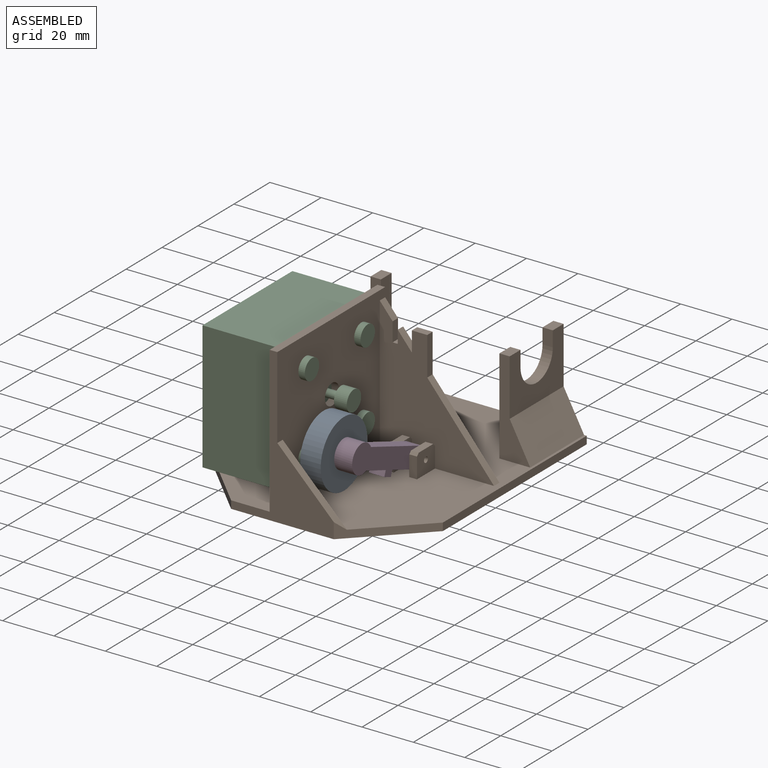
[diagram: assembled view]
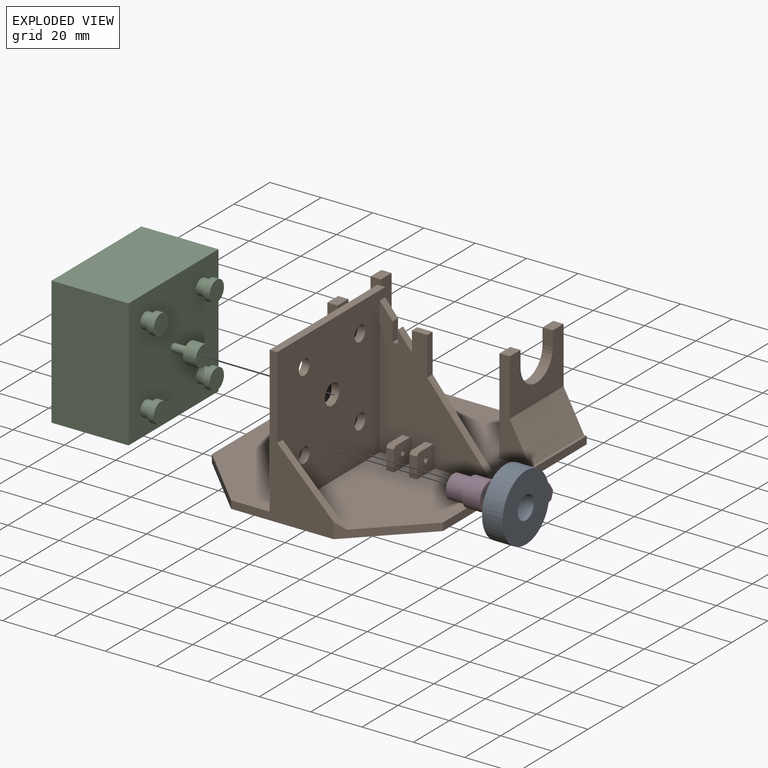
[diagram: exploded view]
GUIDED TOUR — MATED ASSEMBLY (Onshape document 13c378ac469ecfec790ed111, AutoMate assembly 13c378ac469ecfec790ed111_296bcca47453bc3b6c15b679_a3dc4cd97cb48cd143a2b4be_default)

This assembly has 4 components, labeled P0..P3 below (a component is one placed occurrence of a part; the same part can appear more than once), held together by 3 mates. A mate is a constraint between two components; its type names the relative motion it leaves free:
  FASTENED — locks the two components together rigidly (no relative motion),
  REVOLUTE — leaves rotation about the listed axis free (a hinge).
Axis/direction vectors are unit vectors and 'through' points are millimeter coordinates, both in the assembly's world frame.

MATES
  1. FASTENED "Fastened 1": P0 <-> P3, direction (1.000, 0.000, 0.000) through (15.56, -32.27, 34.82) mm
  2. REVOLUTE "Revolute 1": P3 <-> P1, axis (1.000, 0.000, 0.000) through (30.56, -0.98, 23.42) mm
  3. FASTENED "Fastened 2": P2 <-> P1, direction (1.000, 0.000, 0.000) through (9.06, -37.98, 64.42) mm

ASSEMBLY ORDER
  1. P1 — the base component [order heuristic]
  2. P2 [order heuristic]
  3. P3 [order heuristic]
  4. P0 [order heuristic]
Order-tag legend:
  [order heuristic] — this assembly is geometrically interlocked (no collision-free removal order exists), so components are listed in mate-graph order; insertion feasibility is not verified.

Of the 4 components, 4 carry the full construction recipe — the FeatureScript program that regenerates the part's solid from scratch; the rest are supplied as boundary geometry only.
Each toured component is shown spotlighted twice — in the assembled view, then in the exploded view, where a leader line traces a displaced component back to its assembled socket (saturated green if recipe-attached, orange if geometry-only; every other component desaturated gray) — followed by its recipe or geometry summary and the mates that hold it.
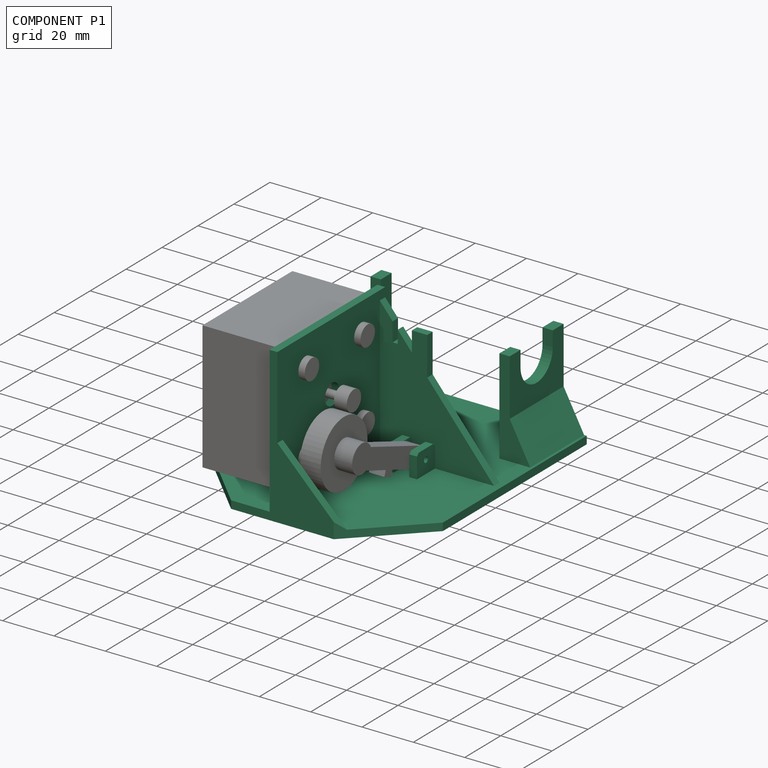
[diagram: component P1 — assembled]
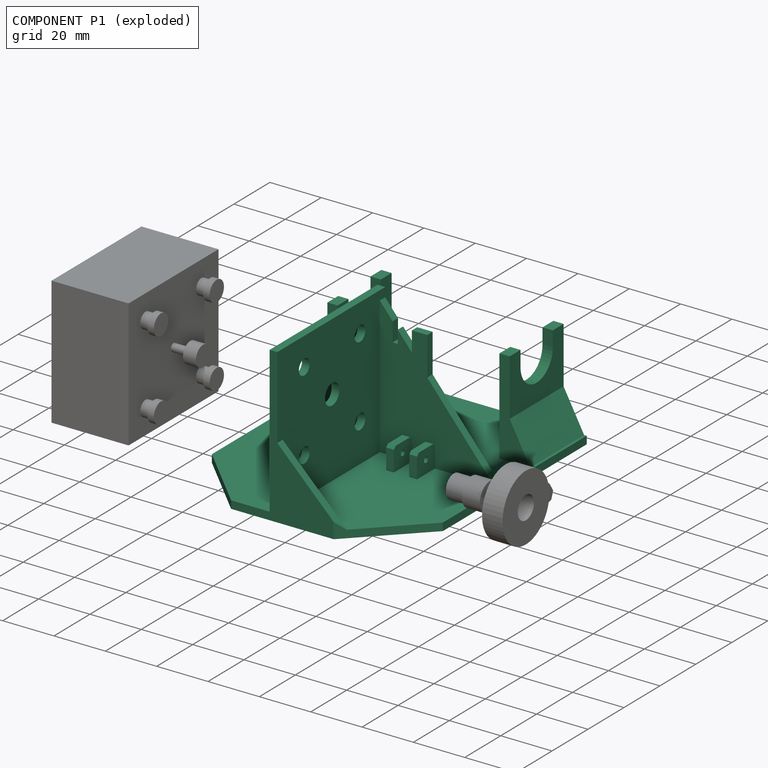
[diagram: component P1 — exploded]
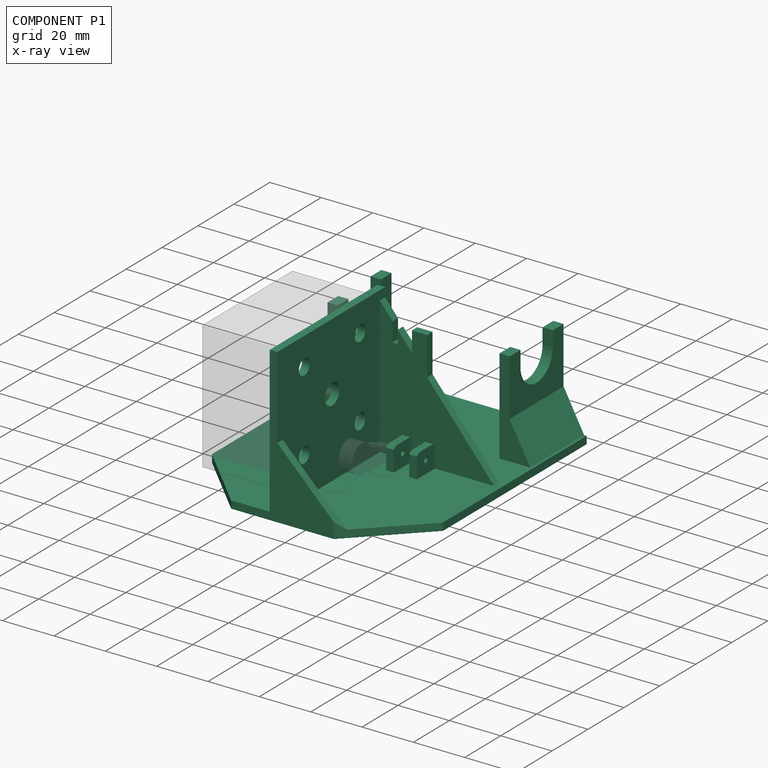
[diagram: component P1 — x-ray view]
COMPONENT P1 — recipe-attached (CADFS 00837090, mesh-verified: the recipe's output STEP matches this component's geometry to below the mesh-comparison resolution (tessellation chordal tolerance ~0.226 mm)).
Held by: REVOLUTE mate "Revolute 1" to P3; FASTENED mate "Fastened 2" to P2.
Construction recipe (FeatureScript — the CAD program that rebuilds this solid; sketch coordinates are in the units given by the * unit suffixes, e.g. mm):

FeatureScript 1511;
import(path : "onshape/std/geometry.fs", version : "1511.0");
import(path : "onshape/std/common.fs", version : "1511.0");
const mm = millimeter;
const VERTEX = EntityType.VERTEX;
const EDGE = EntityType.EDGE;
const FACE = EntityType.FACE;
const BODY = EntityType.BODY;
function v(x, y){return vector(x, y);}
function OD(order){return orderDisambiguation(order);}
function OSD(set){return originalSetDisambiguation(set);}
function TD(topology){return topologyDisambiguation(topology);}
function TDD(query){return trueDependencyDisambiguation(query);}
function sQuery(a, b, c) {return sketchEntityQuery(a, b, c);}

annotation { "Feature Type Name" : "Feature", "Feature Type Description" : "" }
export const myFeature = defineFeature(function(context is Context, id is Id, definition is map)
    precondition{}
    {
        {
            var Q0;
            Q0=qCreatedBy(makeId("Top.planeOp"),FACE);
            var sketch = newSketch(context, id + "F0", { "sketchPlane" : qUnion([Q0])});
            skLineSegment(sketch, "E0.bottom", {"start": v(0, 0) * mm, "end": v(50, 0) * mm});
            skLineSegment(sketch, "E0.top", {"start": v(0, -60) * mm, "end": v(50, -60) * mm});
            skLineSegment(sketch, "E0.left", {"start": v(0, 0) * mm, "end": v(0, -60) * mm});
            skLineSegment(sketch, "E0.right", {"start": v(50, 0) * mm, "end": v(50, -60) * mm});
            skLineSegment(sketch, "E1.top", {"start": v(0, 45) * mm, "end": v(50, 45) * mm});
            skLineSegment(sketch, "E1.left", {"start": v(0, 0) * mm, "end": v(0, 45) * mm});
            skLineSegment(sketch, "E1.right", {"start": v(50, 0) * mm, "end": v(50, 45) * mm});
            skLineSegment(sketch, "E2.bottom", {"start": v(0, -60) * mm, "end": v(-40, -60) * mm});
            skLineSegment(sketch, "E2.top", {"start": v(0, 0) * mm, "end": v(-40, 0) * mm});
            skLineSegment(sketch, "E2.left", {"start": v(0, -60) * mm, "end": v(0, 0) * mm});
            skLineSegment(sketch, "E2.right", {"start": v(-40, -60) * mm, "end": v(-40, 0) * mm});
            skLineSegment(sketch, "E3.bottom", {"start": v(21.5, -3) * mm, "end": v(24.5, -3) * mm});
            skLineSegment(sketch, "E3.top", {"start": v(21.5, -13) * mm, "end": v(24.5, -13) * mm});
            skLineSegment(sketch, "E3.left", {"start": v(21.5, -3) * mm, "end": v(21.5, -13) * mm});
            skLineSegment(sketch, "E3.right", {"start": v(24.5, -3) * mm, "end": v(24.5, -13) * mm});
            skLineSegment(sketch, "E4.bottom", {"start": v(12.5, -3) * mm, "end": v(15.5, -3) * mm});
            skLineSegment(sketch, "E4.top", {"start": v(12.5, -13) * mm, "end": v(15.5, -13) * mm});
            skLineSegment(sketch, "E4.left", {"start": v(12.5, -3) * mm, "end": v(12.5, -13) * mm});
            skLineSegment(sketch, "E4.right", {"start": v(15.5, -3) * mm, "end": v(15.5, -13) * mm});
            skLineSegment(sketch, "E5", {"start": v(-40, 45) * mm, "end": v(-40, 0) * mm});
            skLineSegment(sketch, "E6", {"start": v(-40, 45) * mm, "end": v(0, 45) * mm});
            skLineSegment(sketch, "E7.bottom", {"start": v(-30, 45) * mm, "end": v(-26, 45) * mm});
            skLineSegment(sketch, "E7.top", {"start": v(-30, 15) * mm, "end": v(-26, 15) * mm});
            skLineSegment(sketch, "E7.left", {"start": v(-30, 45) * mm, "end": v(-30, 15) * mm});
            skLineSegment(sketch, "E7.right", {"start": v(-26, 45) * mm, "end": v(-26, 15) * mm});
            skLineSegment(sketch, "E8.bottom", {"start": v(37, 45) * mm, "end": v(41, 45) * mm});
            skLineSegment(sketch, "E8.top", {"start": v(37, 15) * mm, "end": v(41, 15) * mm});
            skLineSegment(sketch, "E8.left", {"start": v(37, 45) * mm, "end": v(37, 15) * mm});
            skLineSegment(sketch, "E8.right", {"start": v(41, 45) * mm, "end": v(41, 15) * mm});
            skSolve(sketch);
        }
        {
            var Q0;
            Q0=makeQuery(id+"F0.imprint","IMPRINT",FACE,{"disambiguationData":[TD([[makeQuery(id+"F0.imprint","IMPRINT",EDGE,{"derivedFrom":sQuery(id+"F0.wireOp",EDGE,"E0.left")}),-1.0]])]});
            var Q1;
            Q1=makeQuery(id+"F0.imprint","IMPRINT",FACE,{"disambiguationData":[TD([[makeQuery(id+"F0.imprint","IMPRINT",EDGE,{"derivedFrom":sQuery(id+"F0.wireOp",EDGE,"E0.bottom")}),-1.0]])]});
            var Q2;
            {var subQ1=sQuery(id+"F0.wireOp",EDGE,"48ikspD8-P3td-oRdJ-VHEi-jSUkpiZ7QIT4.bottom");Q2=makeQuery(id+"F0.imprint","IMPRINT",FACE,{"disambiguationData":[TD([[makeQuery(id+"F0.imprint","IMPRINT",EDGE,{"derivedFrom":subQ1}),-1.0]])]});}
            var Q3;
            Q3=makeQuery(id+"F0.imprint","IMPRINT",FACE,{"disambiguationData":[TD([[makeQuery(id+"F0.imprint","IMPRINT",EDGE,{"derivedFrom":sQuery(id+"F0.wireOp",EDGE,"E0.bottom")}),1.0]])]});
            var Q4;
            Q4=makeQuery(id+"F0.imprint","IMPRINT",FACE,{"disambiguationData":[TD([[makeQuery(id+"F0.imprint","IMPRINT",EDGE,{"derivedFrom":sQuery(id+"F0.wireOp",EDGE,"48ikspD8-P3td-oRdJ-VHEi-jSUkpiZ7QIT4.bottom")}),1.0]])]});
            var Q5;
            Q5=makeQuery(id+"F0.imprint","IMPRINT",FACE,{"disambiguationData":[TD([[makeQuery(id+"F0.imprint","IMPRINT",EDGE,{"derivedFrom":sQuery(id+"F0.wireOp",EDGE,"BPw0P3i8-2CSX-RIvv-VPia-wM2BSo4PSIyP.bottom")}),1.0]])]});
            var Q6;
            {var subQ2=sQuery(id+"F0.wireOp",EDGE,"BPw0P3i8-2CSX-RIvv-VPia-wM2BSo4PSIyP.bottom");Q6=makeQuery(id+"F0.imprint","IMPRINT",FACE,{"disambiguationData":[TD([[makeQuery(id+"F0.imprint","IMPRINT",EDGE,{"derivedFrom":subQ2}),-1.0]])]});}
            var Q7;
            {var subQ2=sQuery(id+"F0.wireOp",EDGE,"BPw0P3i8-2CSX-RIvv-VPia-wM2BSo4PSIyP.top");Q7=makeQuery(id+"F0.imprint","IMPRINT",FACE,{"disambiguationData":[TD([[makeQuery(id+"F0.imprint","IMPRINT",EDGE,{"derivedFrom":subQ2}),1.0]])]});}
            var Q8;
            {var subQ2=sQuery(id+"F0.wireOp",EDGE,"48ikspD8-P3td-oRdJ-VHEi-jSUkpiZ7QIT4.top");Q8=makeQuery(id+"F0.imprint","IMPRINT",FACE,{"disambiguationData":[TD([[makeQuery(id+"F0.imprint","IMPRINT",EDGE,{"derivedFrom":subQ2}),1.0]])]});}
            var Q9;
            {var subQ1=sQuery(id+"F0.wireOp",EDGE,"E1.left");Q9=makeQuery(id+"F0.imprint","IMPRINT",FACE,{"disambiguationData":[TD([[makeQuery(id+"F0.imprint","IMPRINT",EDGE,{"derivedFrom":subQ1}),1.0]])]});}
            extrude(context, id + "F1", {"entities" : qUnion([Q0, Q1, Q2, Q3, Q4, Q5, Q6, Q7, Q8, Q9]), "depth" : 3 * mm, "offsetDistance" : 25 * mm});
        }
        {
            var Q0;
            Q0=makeQuery(id+"F0.imprint","IMPRINT",FACE,{"disambiguationData":[TD([[makeQuery(id+"F0.imprint","IMPRINT",EDGE,{"derivedFrom":sQuery(id+"F0.wireOp",EDGE,"E7.top")}),1.0]])]});
            var Q1;
            Q1=makeQuery(id+"F0.imprint","IMPRINT",FACE,{"disambiguationData":[TD([[makeQuery(id+"F0.imprint","IMPRINT",EDGE,{"derivedFrom":sQuery(id+"F0.wireOp",EDGE,"E8.top")}),1.0]])]});
            extrude(context, id + "F2", {"entities" : qUnion([Q0, Q1]), "operationType" : NewBodyOperationType.ADD, "depth" : 40 * mm, "offsetDistance" : 25 * mm});
        }
        {
            var Q0;
            Q0=makeQuery(id+"F0.imprint","IMPRINT",FACE,{"disambiguationData":[TD([[makeQuery(id+"F0.imprint","IMPRINT",EDGE,{"derivedFrom":sQuery(id+"F0.wireOp",EDGE,"E3.bottom")}),-1.0]])]});
            var Q1;
            Q1=makeQuery(id+"F0.imprint","IMPRINT",FACE,{"disambiguationData":[TD([[makeQuery(id+"F0.imprint","IMPRINT",EDGE,{"derivedFrom":sQuery(id+"F0.wireOp",EDGE,"E4.bottom")}),-1.0]])]});
            extrude(context, id + "F3", {"entities" : qUnion([Q0, Q1]), "operationType" : NewBodyOperationType.ADD, "depth" : 12 * mm, "offsetDistance" : 25 * mm});
        }
        {
            var Q0;
            Q0=makeQuery(id+"F3.opExtrude","CAP_EDGE",EDGE,{"disambiguationData":[OSD([sQuery(id+"F0.wireOp",EDGE,"E4.bottom")])],"isStart":false});
            var Q1;
            Q1=makeQuery(id+"F3.opExtrude","CAP_EDGE",EDGE,{"disambiguationData":[OSD([sQuery(id+"F0.wireOp",EDGE,"E3.bottom")])],"isStart":false});
            var Q2;
            Q2=makeQuery(id+"F3.opExtrude","CAP_EDGE",EDGE,{"disambiguationData":[OSD([sQuery(id+"F0.wireOp",EDGE,"E3.top")])],"isStart":false});
            var Q3;
            Q3=makeQuery(id+"F3.opExtrude","CAP_EDGE",EDGE,{"disambiguationData":[OSD([sQuery(id+"F0.wireOp",EDGE,"E4.top")])],"isStart":false});
            chamfer(context, id + "F4", {"entities" : qUnion([Q0, Q1, Q2, Q3]), "width" : 1 * mm, "tangentPropagation" : true});
        }
        {
            var Q0;
            Q0=makeQuery(id+"F3.opExtrude","SWEPT_FACE",FACE,{"disambiguationData":[OSD([sQuery(id+"F0.wireOp",EDGE,"E3.right")])]});
            var sketch = newSketch(context, id + "F5", { "sketchPlane" : qUnion([Q0])});
            skCircle(sketch, "E9", {"center": v(-8, 8) * mm, "radius": 1.1 * mm});
            skSolve(sketch);
        }
        {
            var Q0;
            Q0=makeQuery(id+"F5.imprint","IMPRINT",FACE,{"disambiguationData":[TD([[makeQuery(id+"F5.imprint","IMPRINT",EDGE,{"derivedFrom":sQuery(id+"F5.wireOp",EDGE,"E9")}),1.0]])]});
            extrude(context, id + "F6", {"entities" : qUnion([Q0]), "operationType" : NewBodyOperationType.REMOVE, "oppositeDirection" : true, "depth" : 13 * mm, "offsetDistance" : 25 * mm});
        }
        {
            var Q0;
            Q0=qCreatedBy(makeId("Right.planeOp"),FACE);
            var sketch = newSketch(context, id + "F7", { "sketchPlane" : qUnion([Q0])});
            skLineSegment(sketch, "E10.bottom", {"start": v(0, 0) * mm, "end": v(-60, 0) * mm});
            skLineSegment(sketch, "E10.top", {"start": v(0, 60) * mm, "end": v(-60, 60) * mm});
            skLineSegment(sketch, "E10.left", {"start": v(0, 0) * mm, "end": v(0, 60) * mm});
            skLineSegment(sketch, "E10.right", {"start": v(-60, 0) * mm, "end": v(-60, 60) * mm});
            skCircle(sketch, "E11", {"center": v(-14, 49) * mm, "radius": 3 * mm});
            skCircle(sketch, "E12", {"center": v(-14, 18) * mm, "radius": 3 * mm});
            skCircle(sketch, "E13", {"center": v(-45, 49) * mm, "radius": 3 * mm});
            skCircle(sketch, "E14", {"center": v(-45, 18) * mm, "radius": 3 * mm});
            skLineSegment(sketch, "E15", {"start": v(-14, 49) * mm, "end": v(-45, 18) * mm, "construction": true});
            skPoint(sketch, "E16", {"position": v(-29.5, 33.5) * mm});
            skCircle(sketch, "E17", {"center": v(-29.5, 33.5) * mm, "radius": 4 * mm});
            skSolve(sketch);
        }
        {
            var Q0;
            {var subQ6=sQuery(id+"F7.wireOp",EDGE,"E10.bottom");Q0=makeQuery(id+"F7.imprint","IMPRINT",FACE,{"disambiguationData":[TD([[makeQuery(id+"F7.imprint","IMPRINT",EDGE,{"derivedFrom":subQ6}),-1.0]])]});}
            var Q1;
            {var subQ0=sQuery(id+"F7.wireOp",EDGE,"5ZiI2LFI-yI2u-3i1h-Rta8-WbluecZz7jaP");Q1=makeQuery(id+"F7.imprint","IMPRINT",FACE,{"disambiguationData":[TD([[makeQuery(id+"F7.imprint","IMPRINT",EDGE,{"derivedFrom":subQ0}),1.0]])]});}
            var Q2;
            {var subQ0=sQuery(id+"F7.wireOp",EDGE,"irvJjMzV-y1dr-gsLo-wSKk-gEWEVd7XGJBn");Q2=makeQuery(id+"F7.imprint","IMPRINT",FACE,{"disambiguationData":[TD([[makeQuery(id+"F7.imprint","IMPRINT",EDGE,{"derivedFrom":subQ0}),1.0]])]});}
            extrude(context, id + "F8", {"entities" : qUnion([Q0, Q1, Q2]), "operationType" : NewBodyOperationType.ADD, "depth" : 3 * mm, "offsetDistance" : 25 * mm});
        }
        {
            var Q0;
            Q0=qCreatedBy(makeId("Front.planeOp"),FACE);
            var sketch = newSketch(context, id + "F9", { "sketchPlane" : qUnion([Q0])});
            skLineSegment(sketch, "E18.bottom", {"start": v(0, 0) * mm, "end": v(50, 0) * mm});
            skLineSegment(sketch, "E18.left", {"start": v(0, 0) * mm, "end": v(0, 60) * mm});
            skLineSegment(sketch, "E19", {"start": v(50, 0) * mm, "end": v(0, 60) * mm});
            skLineSegment(sketch, "E20", {"start": v(15.5, 41.4) * mm, "end": v(15.5, 49.2) * mm});
            skLineSegment(sketch, "E21", {"start": v(15.5, 49.2) * mm, "end": v(21.5, 49.2) * mm});
            skLineSegment(sketch, "E22", {"start": v(21.5, 49.2) * mm, "end": v(21.5, 34.2) * mm});
            skLineSegment(sketch, "E23", {"start": v(8, 50.4) * mm, "end": v(8, 43) * mm});
            skLineSegment(sketch, "E24", {"start": v(8, 43) * mm, "end": v(10, 43) * mm});
            skLineSegment(sketch, "E25", {"start": v(10, 43) * mm, "end": v(10, 48) * mm});
            skSolve(sketch);
        }
        {
            var Q0;
            Q0=makeQuery(id+"F9.imprint","IMPRINT",FACE,{"disambiguationData":[TD([[makeQuery(id+"F9.imprint","IMPRINT",EDGE,{"derivedFrom":sQuery(id+"F9.wireOp",EDGE,"E18.bottom")}),1.0]])]});
            var Q1;
            {var subQ0=sQuery(id+"F9.wireOp",EDGE,"E20");Q1=makeQuery(id+"F9.imprint","IMPRINT",FACE,{"disambiguationData":[TD([[makeQuery(id+"F9.imprint","IMPRINT",EDGE,{"derivedFrom":subQ0}),-1.0]])]});}
            extrude(context, id + "F10", {"entities" : qUnion([Q0, Q1]), "operationType" : NewBodyOperationType.ADD, "depth" : 3 * mm, "offsetDistance" : 25 * mm});
        }
        {
            var Q0;
            Q0=makeQuery(id+"F2.opExtrude","SWEPT_FACE",FACE,{"disambiguationData":[OSD([sQuery(id+"F0.wireOp",EDGE,"E8.right")])]});
            var sketch = newSketch(context, id + "F11", { "sketchPlane" : qUnion([Q0])});
            skCircle(sketch, "E26", {"center": v(30, 34) * mm, "radius": 9 * mm});
            skLineSegment(sketch, "E27", {"start": v(39, 34) * mm, "end": v(39, 47) * mm});
            skLineSegment(sketch, "E28", {"start": v(21, 34) * mm, "end": v(21, 47) * mm});
            skLineSegment(sketch, "E29", {"start": v(39, 47) * mm, "end": v(21, 47) * mm});
            skSolve(sketch);
        }
        {
            var Q0;
            {var subQ0=sQuery(id+"F11.wireOp",EDGE,"E29");Q0=makeQuery(id+"F11.imprint","IMPRINT",FACE,{"disambiguationData":[TD([[makeQuery(id+"F11.imprint","IMPRINT",EDGE,{"derivedFrom":subQ0}),1.0]])]});}
            var Q1;
            {var subQ0=sQuery(id+"F11.wireOp",EDGE,"E26");var subQ1=makeQuery(id+"F11.imprint","INTERSECT",VERTEX,{"derivedFrom":[subQ0,sQuery(id+"F11.wireOp",EDGE,"E28")]});Q1=makeQuery(id+"F11.imprint","IMPRINT",FACE,{"disambiguationData":[TD([[makeQuery(id+"F11.imprint","IMPRINT",EDGE,{"disambiguationData":[TD([[subQ1,1.0]])],"derivedFrom":subQ0}),1.0]])]});}
            var Q2;
            {var subQ0=sQuery(id+"F11.wireOp",EDGE,"E26");var subQ1=makeQuery(id+"F2.opExtrude","CAP_EDGE",EDGE,{"disambiguationData":[OSD([sQuery(id+"F0.wireOp",EDGE,"E8.right")])],"isStart":false});var subQ2=makeQuery(id+"F11.imprint","INTERSECT",VERTEX,{"disambiguationData":[OD(0.0)],"derivedFrom":[subQ1,subQ0]});Q2=makeQuery(id+"F11.imprint","IMPRINT",FACE,{"disambiguationData":[TD([[makeQuery(id+"F11.imprint","IMPRINT",EDGE,{"disambiguationData":[TD([[subQ2,1.0]])],"derivedFrom":subQ0}),1.0]])]});}
            var Q3;
            {var subQ0=sQuery(id+"F11.wireOp",EDGE,"E28");var subQ1=sQuery(id+"F11.wireOp",EDGE,"E26");var subQ2=makeQuery(id+"F11.imprint","INTERSECT",VERTEX,{"derivedFrom":[subQ1,subQ0]});Q3=makeQuery(id+"F11.imprint","IMPRINT",FACE,{"disambiguationData":[TD([[makeQuery(id+"F11.imprint","IMPRINT",EDGE,{"disambiguationData":[TD([[subQ2,1.0]])],"derivedFrom":subQ1}),-1.0]])]});}
            var Q4;
            {var subQ0=sQuery(id+"F11.wireOp",EDGE,"E27");var subQ1=sQuery(id+"F11.wireOp",EDGE,"E26");var subQ2=makeQuery(id+"F11.imprint","INTERSECT",VERTEX,{"derivedFrom":[subQ1,subQ0]});Q4=makeQuery(id+"F11.imprint","IMPRINT",FACE,{"disambiguationData":[TD([[makeQuery(id+"F11.imprint","IMPRINT",EDGE,{"disambiguationData":[TD([[subQ2,-1.0]])],"derivedFrom":subQ1}),-1.0]])]});}
            extrude(context, id + "F12", {"entities" : qUnion([Q0, Q1, Q2, Q3, Q4]), "operationType" : NewBodyOperationType.REMOVE, "oppositeDirection" : true, "depth" : 100 * mm, "offsetDistance" : 25 * mm});
        }
        {
            var Q0;
            Q0=makeQuery(id+"F8.boolean.opBoolean","MERGE",FACE,{"derivedFrom":[makeQuery(id+"F1.opExtrude","SWEPT_FACE",FACE,{"disambiguationData":[OSD([sQuery(id+"F0.wireOp",EDGE,"E0.top"),sQuery(id+"F0.wireOp",EDGE,"E2.bottom")])]}),makeQuery(id+"F8.opExtrude","SWEPT_FACE",FACE,{"disambiguationData":[OSD([sQuery(id+"F7.wireOp",EDGE,"E10.right")])]})]});
            var sketch = newSketch(context, id + "F13", { "sketchPlane" : qUnion([Q0])});
            skLineSegment(sketch, "E30", {"start": v(3, 3) * mm, "end": v(3, 28) * mm});
            skLineSegment(sketch, "E31", {"start": v(3, 28) * mm, "end": v(28, 3) * mm});
            skLineSegment(sketch, "E32", {"start": v(28, 3) * mm, "end": v(3, 3) * mm});
            skSolve(sketch);
        }
        {
            var Q0;
            Q0=makeQuery(id+"F13.imprint","IMPRINT",FACE,{"disambiguationData":[TD([[makeQuery(id+"F13.imprint","IMPRINT",EDGE,{"derivedFrom":sQuery(id+"F13.wireOp",EDGE,"E30")}),-1.0]])]});
            extrude(context, id + "F14", {"entities" : qUnion([Q0]), "operationType" : NewBodyOperationType.ADD, "oppositeDirection" : true, "depth" : 3 * mm, "offsetDistance" : 25 * mm});
        }
        {
            var Q0;
            Q0=makeQuery(id+"F1.opExtrude","SWEPT_EDGE",EDGE,{"disambiguationData":[OSD([sQuery(id+"F0.wireOp",EDGE,"E0.top"),sQuery(id+"F0.wireOp",EDGE,"E0.right")])]});
            var Q1;
            Q1=makeQuery(id+"F1.opExtrude","SWEPT_EDGE",EDGE,{"disambiguationData":[OSD([sQuery(id+"F0.wireOp",EDGE,"E2.bottom"),sQuery(id+"F0.wireOp",EDGE,"E2.right")])]});
            chamfer(context, id + "F15", {"entities" : qUnion([Q0, Q1]), "width" : 25 * mm, "tangentPropagation" : true});
        }
        {
            var Q0;
            {var subQ0=sQuery(id+"F0.wireOp",EDGE,"E6");var subQ1=sQuery(id+"F0.wireOp",EDGE,"E1.top");Q0=makeQuery(id+"F2.boolean.opBoolean","MERGE",FACE,{"derivedFrom":[makeQuery(id+"F1.opExtrude","SWEPT_FACE",FACE,{"disambiguationData":[OSD([subQ1,subQ0])]}),makeQuery(id+"F1.opExtrude","SWEPT_FACE",FACE,{"disambiguationData":[OSD([subQ1])]}),makeQuery(id+"F1.opExtrude","SWEPT_FACE",FACE,{"disambiguationData":[OSD([subQ0])]}),makeQuery(id+"F2.opExtrude","SWEPT_FACE",FACE,{"disambiguationData":[OSD([subQ1])]}),makeQuery(id+"F2.opExtrude","SWEPT_FACE",FACE,{"disambiguationData":[OSD([subQ0])]})]});}
            var sketch = newSketch(context, id + "F16", { "sketchPlane" : qUnion([Q0])});
            skPoint(sketch, "E33.0", {"position": v(-41, 3) * mm});
            skPoint(sketch, "E33.1", {"position": v(30, 3) * mm});
            skLineSegment(sketch, "E34", {"start": v(-41, 3) * mm, "end": v(-41, 18) * mm});
            skLineSegment(sketch, "E35", {"start": v(-41, 18) * mm, "end": v(-49, 3) * mm});
            skLineSegment(sketch, "E36", {"start": v(-49, 3) * mm, "end": v(-41, 3) * mm});
            skLineSegment(sketch, "E37", {"start": v(30, 3) * mm, "end": v(30, 18) * mm});
            skLineSegment(sketch, "E38", {"start": v(30, 18) * mm, "end": v(38, 3) * mm});
            skLineSegment(sketch, "E39", {"start": v(38, 3) * mm, "end": v(30, 3) * mm});
            skSolve(sketch);
        }
        {
            var Q0;
            Q0=makeQuery(id+"F16.imprint","IMPRINT",FACE,{"disambiguationData":[TD([[makeQuery(id+"F16.imprint","IMPRINT",EDGE,{"derivedFrom":sQuery(id+"F16.wireOp",EDGE,"E37")}),1.0]])]});
            var Q1;
            Q1=makeQuery(id+"F16.imprint","IMPRINT",FACE,{"disambiguationData":[TD([[makeQuery(id+"F16.imprint","IMPRINT",EDGE,{"derivedFrom":sQuery(id+"F16.wireOp",EDGE,"E34")}),-1.0]])]});
            extrude(context, id + "F17", {"entities" : qUnion([Q0, Q1]), "operationType" : NewBodyOperationType.ADD, "oppositeDirection" : true, "depth" : 30 * mm, "offsetDistance" : 25 * mm});
        }
    });
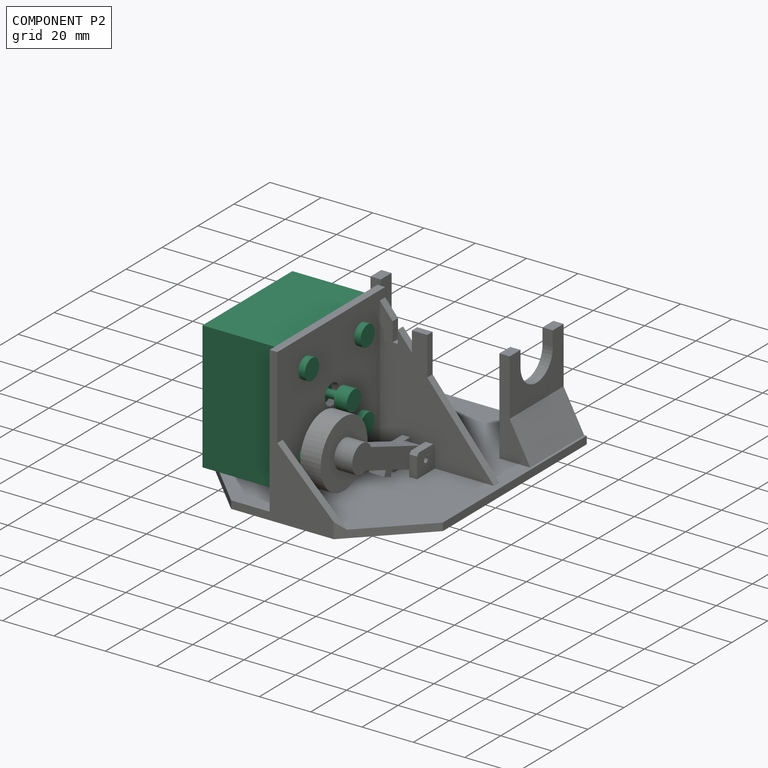
[diagram: component P2 — assembled]
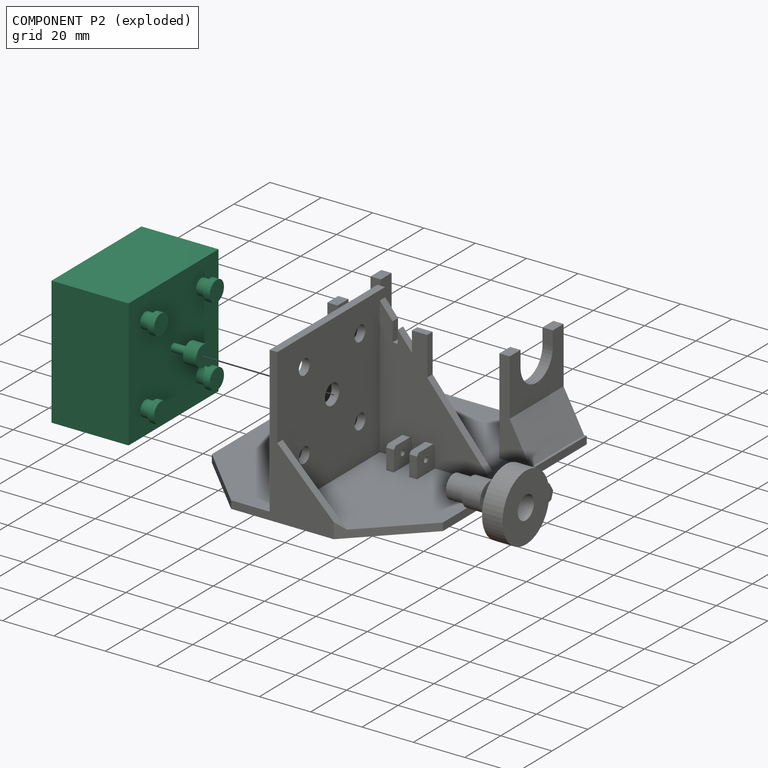
[diagram: component P2 — exploded]
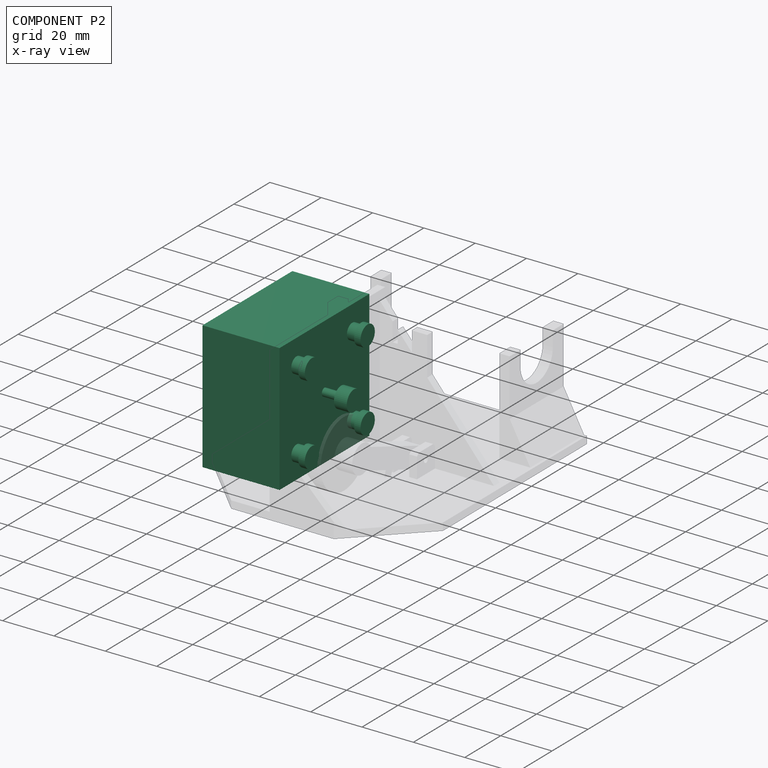
[diagram: component P2 — x-ray view]
COMPONENT P2 — recipe-attached (CADFS 00837092, mesh-verified: the recipe's output STEP matches this component's geometry to below the mesh-comparison resolution (tessellation chordal tolerance ~0.123 mm)).
Held by: FASTENED mate "Fastened 2" to P1.
Construction recipe (FeatureScript — the CAD program that rebuilds this solid; sketch coordinates are in the units given by the * unit suffixes, e.g. mm):

FeatureScript 1511;
import(path : "onshape/std/geometry.fs", version : "1511.0");
import(path : "onshape/std/common.fs", version : "1511.0");
const mm = millimeter;
const VERTEX = EntityType.VERTEX;
const EDGE = EntityType.EDGE;
const FACE = EntityType.FACE;
const BODY = EntityType.BODY;
function v(x, y){return vector(x, y);}
function OD(order){return orderDisambiguation(order);}
function OSD(set){return originalSetDisambiguation(set);}
function TD(topology){return topologyDisambiguation(topology);}
function TDD(query){return trueDependencyDisambiguation(query);}
function sQuery(a, b, c) {return sketchEntityQuery(a, b, c);}

annotation { "Feature Type Name" : "Feature", "Feature Type Description" : "" }
export const myFeature = defineFeature(function(context is Context, id is Id, definition is map)
    precondition{}
    {
        {
            var Q0;
            Q0=qCreatedBy(makeId("Front.planeOp"),FACE);
            var sketch = newSketch(context, id + "F0", { "sketchPlane" : qUnion([Q0])});
            skLineSegment(sketch, "E0.bottom", {"start": v(-25, 25) * mm, "end": v(25, 25) * mm});
            skLineSegment(sketch, "E0.top", {"start": v(-25, -25) * mm, "end": v(25, -25) * mm});
            skLineSegment(sketch, "E0.left", {"start": v(-25, 25) * mm, "end": v(-25, -25) * mm});
            skLineSegment(sketch, "E0.right", {"start": v(25, 25) * mm, "end": v(25, -25) * mm});
            skPoint(sketch, "E0.middle", {"position": v(0, 0) * mm});
            skCircle(sketch, "E1", {"center": v(-15.5, 15.5) * mm, "radius": 4 * mm});
            skCircle(sketch, "E2", {"center": v(15.5, 15.5) * mm, "radius": 4 * mm});
            skCircle(sketch, "E3", {"center": v(-15.5, -15.5) * mm, "radius": 4 * mm});
            skCircle(sketch, "E4", {"center": v(15.5, -15.5) * mm, "radius": 4 * mm});
            skCircle(sketch, "E5", {"center": v(-15.5, 15.5) * mm, "radius": 3 * mm});
            skCircle(sketch, "E6", {"center": v(15.5, 15.5) * mm, "radius": 3 * mm});
            skCircle(sketch, "E7", {"center": v(-15.5, -15.5) * mm, "radius": 3 * mm});
            skCircle(sketch, "E8", {"center": v(15.5, -15.5) * mm, "radius": 3 * mm});
            skLineSegment(sketch, "E9", {"start": v(25, 25) * mm, "end": v(-25, -25) * mm, "construction": true});
            skLineSegment(sketch, "E10", {"start": v(-25, 25) * mm, "end": v(25, -25) * mm, "construction": true});
            skCircle(sketch, "E11", {"center": v(0, 0) * mm, "radius": 4 * mm});
            skCircle(sketch, "E12", {"center": v(0, 0) * mm, "radius": 1.5 * mm});
            skSolve(sketch);
        }
        {
            var Q0;
            Q0=makeQuery(id+"F0.imprint","IMPRINT",FACE,{"disambiguationData":[TD([[makeQuery(id+"F0.imprint","IMPRINT",EDGE,{"derivedFrom":sQuery(id+"F0.wireOp",EDGE,"E0.bottom")}),-1.0]])]});
            var Q1;
            Q1=makeQuery(id+"F0.imprint","IMPRINT",FACE,{"disambiguationData":[TD([[makeQuery(id+"F0.imprint","IMPRINT",EDGE,{"derivedFrom":sQuery(id+"F0.wireOp",EDGE,"E1")}),1.0]])]});
            var Q2;
            Q2=makeQuery(id+"F0.imprint","IMPRINT",FACE,{"disambiguationData":[TD([[makeQuery(id+"F0.imprint","IMPRINT",EDGE,{"derivedFrom":sQuery(id+"F0.wireOp",EDGE,"E3")}),1.0]])]});
            var Q3;
            Q3=makeQuery(id+"F0.imprint","IMPRINT",FACE,{"disambiguationData":[TD([[makeQuery(id+"F0.imprint","IMPRINT",EDGE,{"derivedFrom":sQuery(id+"F0.wireOp",EDGE,"E4")}),1.0]])]});
            var Q4;
            Q4=makeQuery(id+"F0.imprint","IMPRINT",FACE,{"disambiguationData":[TD([[makeQuery(id+"F0.imprint","IMPRINT",EDGE,{"derivedFrom":sQuery(id+"F0.wireOp",EDGE,"E2")}),1.0]])]});
            var Q5;
            Q5=makeQuery(id+"F0.imprint","IMPRINT",FACE,{"disambiguationData":[TD([[makeQuery(id+"F0.imprint","IMPRINT",EDGE,{"derivedFrom":sQuery(id+"F0.wireOp",EDGE,"E8")}),1.0]])]});
            var Q6;
            Q6=makeQuery(id+"F0.imprint","IMPRINT",FACE,{"disambiguationData":[TD([[makeQuery(id+"F0.imprint","IMPRINT",EDGE,{"derivedFrom":sQuery(id+"F0.wireOp",EDGE,"E7")}),1.0]])]});
            var Q7;
            Q7=makeQuery(id+"F0.imprint","IMPRINT",FACE,{"disambiguationData":[TD([[makeQuery(id+"F0.imprint","IMPRINT",EDGE,{"derivedFrom":sQuery(id+"F0.wireOp",EDGE,"E6")}),1.0]])]});
            var Q8;
            Q8=makeQuery(id+"F0.imprint","IMPRINT",FACE,{"disambiguationData":[TD([[makeQuery(id+"F0.imprint","IMPRINT",EDGE,{"derivedFrom":sQuery(id+"F0.wireOp",EDGE,"E5")}),1.0]])]});
            var Q9;
            Q9=makeQuery(id+"F0.imprint","IMPRINT",FACE,{"disambiguationData":[TD([[makeQuery(id+"F0.imprint","IMPRINT",EDGE,{"derivedFrom":sQuery(id+"F0.wireOp",EDGE,"E11")}),1.0]])]});
            var Q10;
            Q10=makeQuery(id+"F0.imprint","IMPRINT",FACE,{"disambiguationData":[TD([[makeQuery(id+"F0.imprint","IMPRINT",EDGE,{"derivedFrom":sQuery(id+"F0.wireOp",EDGE,"E12")}),1.0]])]});
            extrude(context, id + "F1", {"entities" : qUnion([Q0, Q1, Q2, Q3, Q4, Q5, Q6, Q7, Q8, Q9, Q10]), "oppositeDirection" : true, "depth" : 30 * mm, "offsetDistance" : 25 * mm});
        }
        {
            var Q0;
            Q0=makeQuery(id+"F0.imprint","IMPRINT",FACE,{"disambiguationData":[TD([[makeQuery(id+"F0.imprint","IMPRINT",EDGE,{"derivedFrom":sQuery(id+"F0.wireOp",EDGE,"E1")}),1.0]])]});
            var Q1;
            Q1=makeQuery(id+"F0.imprint","IMPRINT",FACE,{"disambiguationData":[TD([[makeQuery(id+"F0.imprint","IMPRINT",EDGE,{"derivedFrom":sQuery(id+"F0.wireOp",EDGE,"E2")}),1.0]])]});
            var Q2;
            Q2=makeQuery(id+"F0.imprint","IMPRINT",FACE,{"disambiguationData":[TD([[makeQuery(id+"F0.imprint","IMPRINT",EDGE,{"derivedFrom":sQuery(id+"F0.wireOp",EDGE,"E4")}),1.0]])]});
            var Q3;
            Q3=makeQuery(id+"F0.imprint","IMPRINT",FACE,{"disambiguationData":[TD([[makeQuery(id+"F0.imprint","IMPRINT",EDGE,{"derivedFrom":sQuery(id+"F0.wireOp",EDGE,"E3")}),1.0]])]});
            extrude(context, id + "F2", {"entities" : qUnion([Q0, Q1, Q2, Q3]), "operationType" : NewBodyOperationType.ADD, "depth" : 6 * mm, "offsetDistance" : 25 * mm});
        }
        {
            var Q0;
            Q0=makeQuery(id+"F0.imprint","IMPRINT",FACE,{"disambiguationData":[TD([[makeQuery(id+"F0.imprint","IMPRINT",EDGE,{"derivedFrom":sQuery(id+"F0.wireOp",EDGE,"E5")}),1.0]])]});
            var Q1;
            Q1=makeQuery(id+"F0.imprint","IMPRINT",FACE,{"disambiguationData":[TD([[makeQuery(id+"F0.imprint","IMPRINT",EDGE,{"derivedFrom":sQuery(id+"F0.wireOp",EDGE,"E6")}),1.0]])]});
            var Q2;
            Q2=makeQuery(id+"F0.imprint","IMPRINT",FACE,{"disambiguationData":[TD([[makeQuery(id+"F0.imprint","IMPRINT",EDGE,{"derivedFrom":sQuery(id+"F0.wireOp",EDGE,"E8")}),1.0]])]});
            var Q3;
            Q3=makeQuery(id+"F0.imprint","IMPRINT",FACE,{"disambiguationData":[TD([[makeQuery(id+"F0.imprint","IMPRINT",EDGE,{"derivedFrom":sQuery(id+"F0.wireOp",EDGE,"E7")}),1.0]])]});
            extrude(context, id + "F3", {"entities" : qUnion([Q0, Q1, Q2, Q3]), "operationType" : NewBodyOperationType.ADD, "depth" : 6 * mm, "offsetDistance" : 25 * mm});
        }
        {
            var Q0;
            Q0=makeQuery(id+"F0.imprint","IMPRINT",FACE,{"disambiguationData":[TD([[makeQuery(id+"F0.imprint","IMPRINT",EDGE,{"derivedFrom":sQuery(id+"F0.wireOp",EDGE,"E11")}),1.0]])]});
            var Q1;
            Q1=makeQuery(id+"F0.imprint","IMPRINT",FACE,{"disambiguationData":[TD([[makeQuery(id+"F0.imprint","IMPRINT",EDGE,{"derivedFrom":sQuery(id+"F0.wireOp",EDGE,"E12")}),1.0]])]});
            extrude(context, id + "F4", {"entities" : qUnion([Q0, Q1]), "operationType" : NewBodyOperationType.ADD, "depth" : 11.5 * mm, "offsetDistance" : 25 * mm});
        }
        {
            var Q0;
            Q0=makeQuery(id+"F0.imprint","IMPRINT",FACE,{"disambiguationData":[TD([[makeQuery(id+"F0.imprint","IMPRINT",EDGE,{"derivedFrom":sQuery(id+"F0.wireOp",EDGE,"E3")}),1.0]])]});
            var Q1;
            Q1=makeQuery(id+"F0.imprint","IMPRINT",FACE,{"disambiguationData":[TD([[makeQuery(id+"F0.imprint","IMPRINT",EDGE,{"derivedFrom":sQuery(id+"F0.wireOp",EDGE,"E4")}),1.0]])]});
            var Q2;
            Q2=makeQuery(id+"F0.imprint","IMPRINT",FACE,{"disambiguationData":[TD([[makeQuery(id+"F0.imprint","IMPRINT",EDGE,{"derivedFrom":sQuery(id+"F0.wireOp",EDGE,"E2")}),1.0]])]});
            var Q3;
            Q3=makeQuery(id+"F0.imprint","IMPRINT",FACE,{"disambiguationData":[TD([[makeQuery(id+"F0.imprint","IMPRINT",EDGE,{"derivedFrom":sQuery(id+"F0.wireOp",EDGE,"E1")}),1.0]])]});
            extrude(context, id + "F5", {"entities" : qUnion([Q0, Q1, Q2, Q3]), "operationType" : NewBodyOperationType.REMOVE, "depth" : 3.5 * mm, "offsetDistance" : 25 * mm});
        }
        {
            var Q0;
            Q0=makeQuery(id+"F0.imprint","IMPRINT",FACE,{"disambiguationData":[TD([[makeQuery(id+"F0.imprint","IMPRINT",EDGE,{"derivedFrom":sQuery(id+"F0.wireOp",EDGE,"E11")}),1.0]])]});
            extrude(context, id + "F6", {"entities" : qUnion([Q0]), "operationType" : NewBodyOperationType.REMOVE, "depth" : 6.5 * mm, "offsetDistance" : 25 * mm});
        }
    });
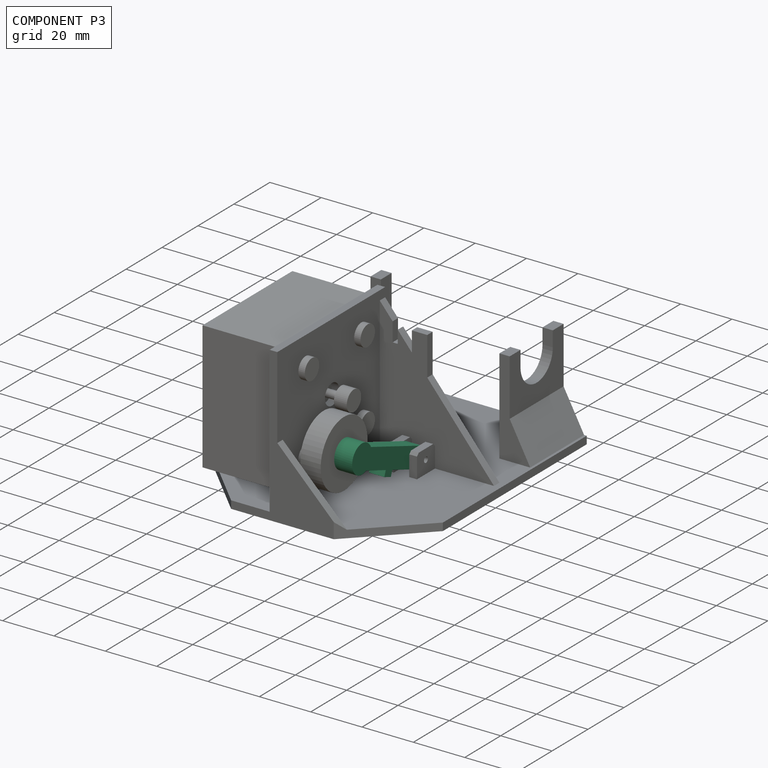
[diagram: component P3 — assembled]
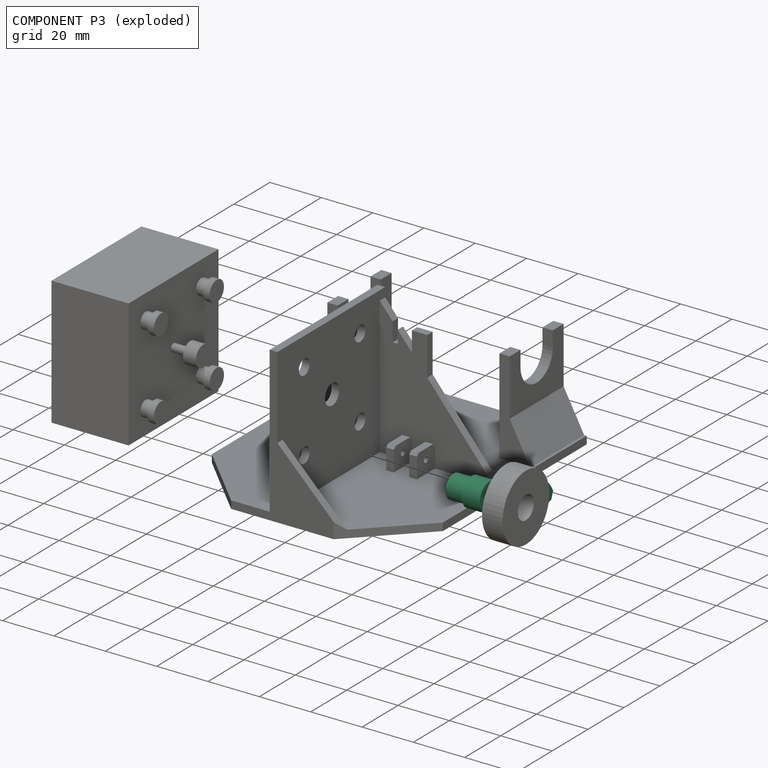
[diagram: component P3 — exploded]
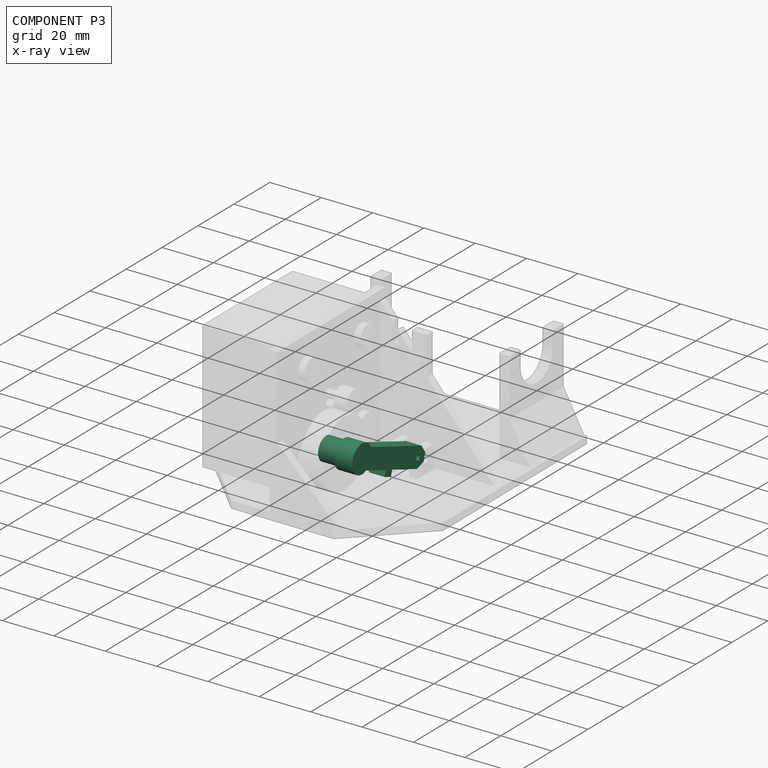
[diagram: component P3 — x-ray view]
COMPONENT P3 — recipe-attached (CADFS 00837089, mesh-verified: the recipe's output STEP matches this component's geometry to below the mesh-comparison resolution (tessellation chordal tolerance ~0.0725 mm)).
Held by: FASTENED mate "Fastened 1" to P0; REVOLUTE mate "Revolute 1" to P1.
Construction recipe (FeatureScript — the CAD program that rebuilds this solid; sketch coordinates are in the units given by the * unit suffixes, e.g. mm):

FeatureScript 1511;
import(path : "onshape/std/geometry.fs", version : "1511.0");
import(path : "onshape/std/common.fs", version : "1511.0");
const mm = millimeter;
const VERTEX = EntityType.VERTEX;
const EDGE = EntityType.EDGE;
const FACE = EntityType.FACE;
const BODY = EntityType.BODY;
function v(x, y){return vector(x, y);}
function OD(order){return orderDisambiguation(order);}
function OSD(set){return originalSetDisambiguation(set);}
function TD(topology){return topologyDisambiguation(topology);}
function TDD(query){return trueDependencyDisambiguation(query);}
function sQuery(a, b, c) {return sketchEntityQuery(a, b, c);}

annotation { "Feature Type Name" : "Feature", "Feature Type Description" : "" }
export const myFeature = defineFeature(function(context is Context, id is Id, definition is map)
    precondition{}
    {
        {
            var Q0;
            Q0=qCreatedBy(makeId("Front.planeOp"),FACE);
            var sketch = newSketch(context, id + "F0", { "sketchPlane" : qUnion([Q0])});
            skCircle(sketch, "E0", {"center": v(0, 0) * mm, "radius": 4.5 * mm});
            skCircle(sketch, "E1", {"center": v(0, 0) * mm, "radius": 13 * mm, "construction": true});
            skCircle(sketch, "E2", {"center": v(0, 0) * mm, "radius": 5.5 * mm});
            skLineSegment(sketch, "E3", {"start": v(0, -5.5) * mm, "end": v(21.21, -26.71) * mm});
            skLineSegment(sketch, "E4", {"start": v(21.21, -26.71) * mm, "end": v(25.1, -27.23) * mm});
            skLineSegment(sketch, "E5", {"start": v(25.1, -27.23) * mm, "end": v(27.22, -25.11) * mm});
            skLineSegment(sketch, "E6", {"start": v(27.22, -25.11) * mm, "end": v(26.71, -21.21) * mm});
            skLineSegment(sketch, "E7", {"start": v(26.71, -21.21) * mm, "end": v(5.5, 0) * mm});
            skCircle(sketch, "E8", {"center": v(23.54, -23.55) * mm, "radius": 1.1 * mm});
            skLineSegment(sketch, "E9", {"start": v(8.2, -13.7) * mm, "end": v(6.56, -15.33) * mm});
            skLineSegment(sketch, "E10", {"start": v(6.56, -15.33) * mm, "end": v(9.3, -18.07) * mm});
            skLineSegment(sketch, "E11", {"start": v(9.3, -18.07) * mm, "end": v(10.93, -16.43) * mm});
            skSolve(sketch);
        }
        {
            var Q0;
            Q0=makeQuery(id+"F0.imprint","IMPRINT",FACE,{"disambiguationData":[TD([[makeQuery(id+"F0.imprint","IMPRINT",EDGE,{"derivedFrom":sQuery(id+"F0.wireOp",EDGE,"E0")}),1.0]])]});
            var Q1;
            Q1=makeQuery(id+"F0.imprint","IMPRINT",FACE,{"disambiguationData":[TD([[makeQuery(id+"F0.imprint","IMPRINT",EDGE,{"derivedFrom":sQuery(id+"F0.wireOp",EDGE,"E0")}),-1.0]])]});
            var Q2;
            {var subQ0=sQuery(id+"F0.wireOp",EDGE,"E4");Q2=makeQuery(id+"F0.imprint","IMPRINT",FACE,{"disambiguationData":[TD([[makeQuery(id+"F0.imprint","IMPRINT",EDGE,{"derivedFrom":subQ0}),1.0]])]});}
            var Q3;
            {var subQ0=sQuery(id+"F0.wireOp",EDGE,"E9");Q3=makeQuery(id+"F0.imprint","IMPRINT",FACE,{"disambiguationData":[TD([[makeQuery(id+"F0.imprint","IMPRINT",EDGE,{"derivedFrom":subQ0}),1.0]])]});}
            extrude(context, id + "F1", {"entities" : qUnion([Q0, Q1, Q2, Q3]), "depth" : 6 * mm, "offsetDistance" : 25 * mm});
        }
        {
            var Q0;
            Q0=makeQuery(id+"F0.imprint","IMPRINT",FACE,{"disambiguationData":[TD([[makeQuery(id+"F0.imprint","IMPRINT",EDGE,{"derivedFrom":sQuery(id+"F0.wireOp",EDGE,"E0")}),-1.0]])]});
            var Q1;
            Q1=makeQuery(id+"F0.imprint","IMPRINT",FACE,{"disambiguationData":[TD([[makeQuery(id+"F0.imprint","IMPRINT",EDGE,{"derivedFrom":sQuery(id+"F0.wireOp",EDGE,"E0")}),1.0]])]});
            extrude(context, id + "F2", {"entities" : qUnion([Q0, Q1]), "operationType" : NewBodyOperationType.ADD, "oppositeDirection" : true, "depth" : 1 * mm, "offsetDistance" : 25 * mm});
        }
        {
            var Q0;
            Q0=makeQuery(id+"F0.imprint","IMPRINT",FACE,{"disambiguationData":[TD([[makeQuery(id+"F0.imprint","IMPRINT",EDGE,{"derivedFrom":sQuery(id+"F0.wireOp",EDGE,"E0")}),1.0]])]});
            extrude(context, id + "F3", {"entities" : qUnion([Q0]), "operationType" : NewBodyOperationType.ADD, "oppositeDirection" : true, "depth" : 8 * mm, "offsetDistance" : 25 * mm});
        }
    });
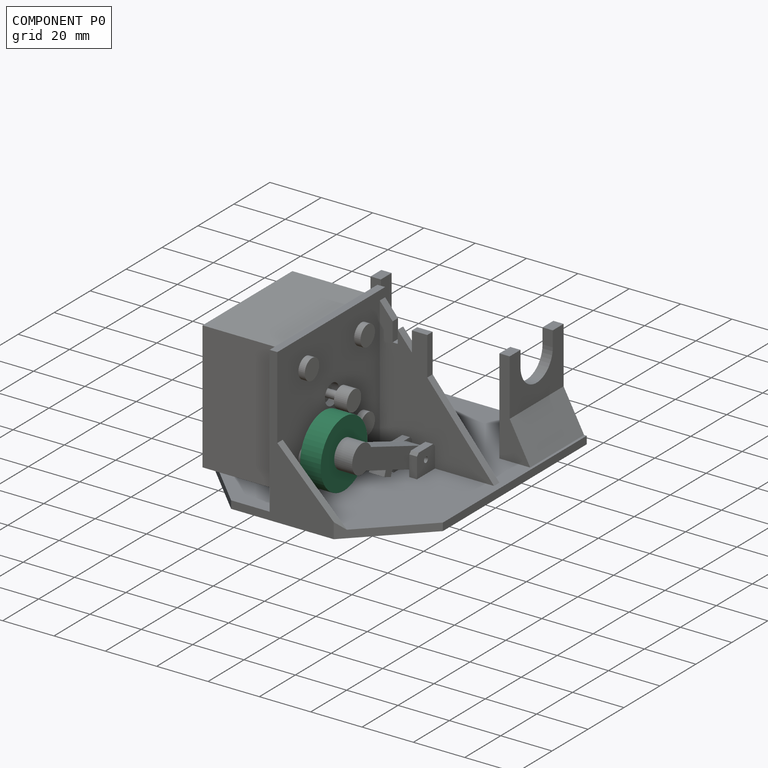
[diagram: component P0 — assembled]
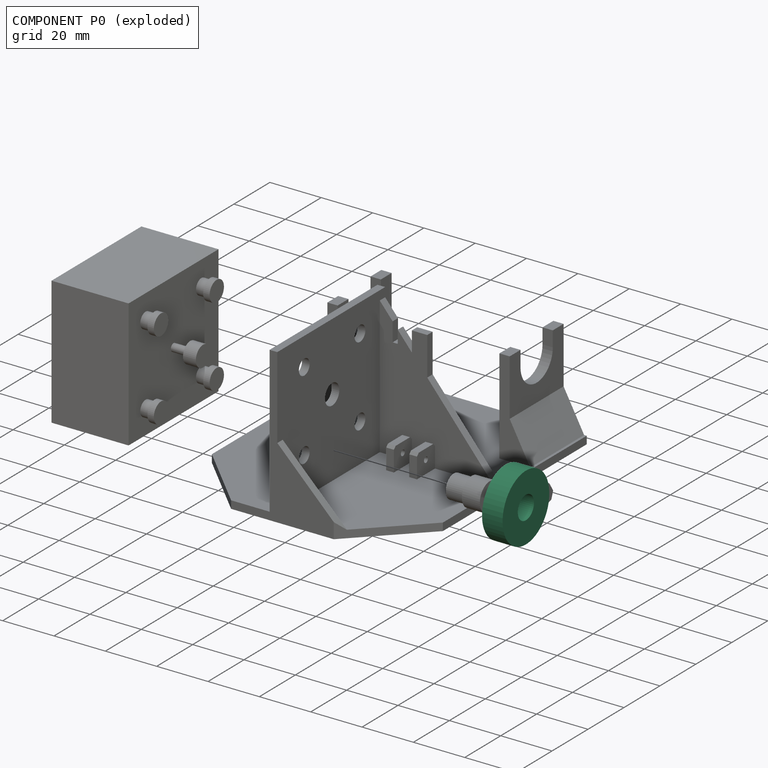
[diagram: component P0 — exploded]
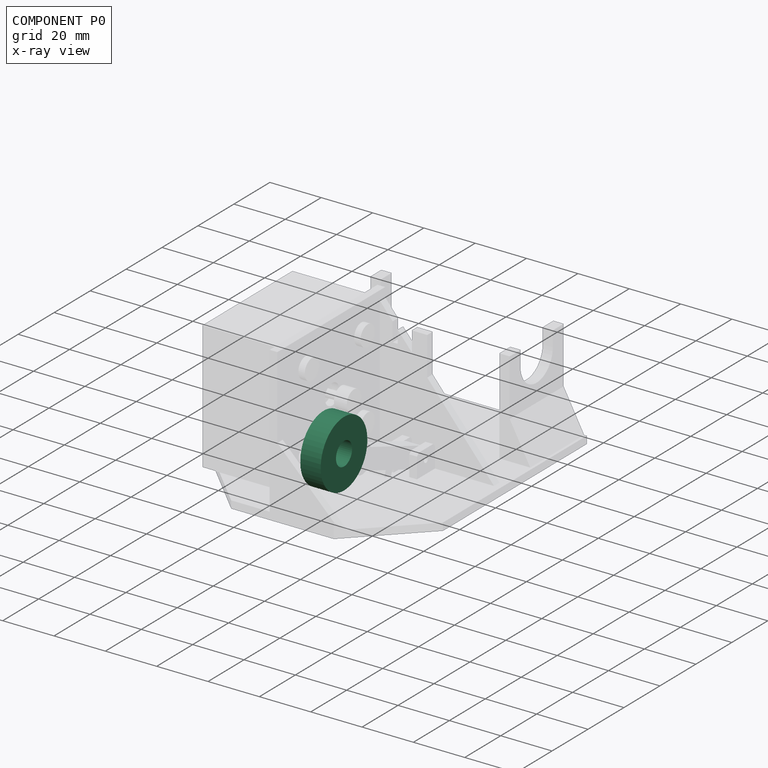
[diagram: component P0 — x-ray view]
COMPONENT P0 — recipe-attached (CADFS 00837093, mesh-verified: the recipe's output STEP matches this component's geometry to below the mesh-comparison resolution (tessellation chordal tolerance ~0.0564 mm)).
Held by: FASTENED mate "Fastened 1" to P3.
Construction recipe (FeatureScript — the CAD program that rebuilds this solid; sketch coordinates are in the units given by the * unit suffixes, e.g. mm):

FeatureScript 1511;
import(path : "onshape/std/geometry.fs", version : "1511.0");
import(path : "onshape/std/common.fs", version : "1511.0");
const mm = millimeter;
const VERTEX = EntityType.VERTEX;
const EDGE = EntityType.EDGE;
const FACE = EntityType.FACE;
const BODY = EntityType.BODY;
function v(x, y){return vector(x, y);}
function OD(order){return orderDisambiguation(order);}
function OSD(set){return originalSetDisambiguation(set);}
function TD(topology){return topologyDisambiguation(topology);}
function TDD(query){return trueDependencyDisambiguation(query);}
function sQuery(a, b, c) {return sketchEntityQuery(a, b, c);}

annotation { "Feature Type Name" : "Feature", "Feature Type Description" : "" }
export const myFeature = defineFeature(function(context is Context, id is Id, definition is map)
    precondition{}
    {
        {
            var Q0;
            Q0=qCreatedBy(makeId("Front.planeOp"),FACE);
            var sketch = newSketch(context, id + "F0", { "sketchPlane" : qUnion([Q0])});
            skCircle(sketch, "E0", {"center": v(0, 0) * mm, "radius": 4.5 * mm});
            skCircle(sketch, "E1", {"center": v(0, 0) * mm, "radius": 13 * mm});
            skSolve(sketch);
        }
        {
            var Q0;
            Q0=makeQuery(id+"F0.imprint","IMPRINT",FACE,{"disambiguationData":[TD([[makeQuery(id+"F0.imprint","IMPRINT",EDGE,{"derivedFrom":sQuery(id+"F0.wireOp",EDGE,"E0")}),-1.0]])]});
            extrude(context, id + "F1", {"entities" : qUnion([Q0]), "depth" : 8 * mm, "offsetDistance" : 25 * mm});
        }
    });
PROVENANCE & LICENSES
Assembly (occurrences, transforms, mates, per-part STEP geometry): AutoMate dataset, Zenodo record 7776208, CC0.
Construction recipes: CADFS (HuggingFace VladPyatov/CADFS, CC-BY-4.0, layered over the ABC dataset), FeatureScript reconstruction programs keyed by ABC model id.
Join: ABC meta listings map ABC model id -> Onshape documentId; within a shared document, parts are matched by geometric signature (bounding-box dims + volume at 0.1% relative tolerance, exact B-rep face/solid counts).
Verification: 4 of this assembly's 4 components carry a recipe attachment, and every attachment is mesh-verified: the CADFS STEP and the AutoMate member STEP were compared as meshes in their shared local frame (symmetric sampled-point-to-mesh distance); worst across the 4 attachments: below the mesh-comparison resolution (tessellation chordal tolerance ~0.226 mm) on a 151 mm part.
Renders: orthographic iso camera (az 35 / el 25); the floor grid conveys scale (grid pitch printed in each image; no ruler). In the exploded view each component is displaced by its stored offset vector: the offsets alone carry the explosion direction (mate normal/axis signs are not orientation cues and do not encode it), and separation distances are assigned per mate-chain, not proportionally to assembly-order depth.
